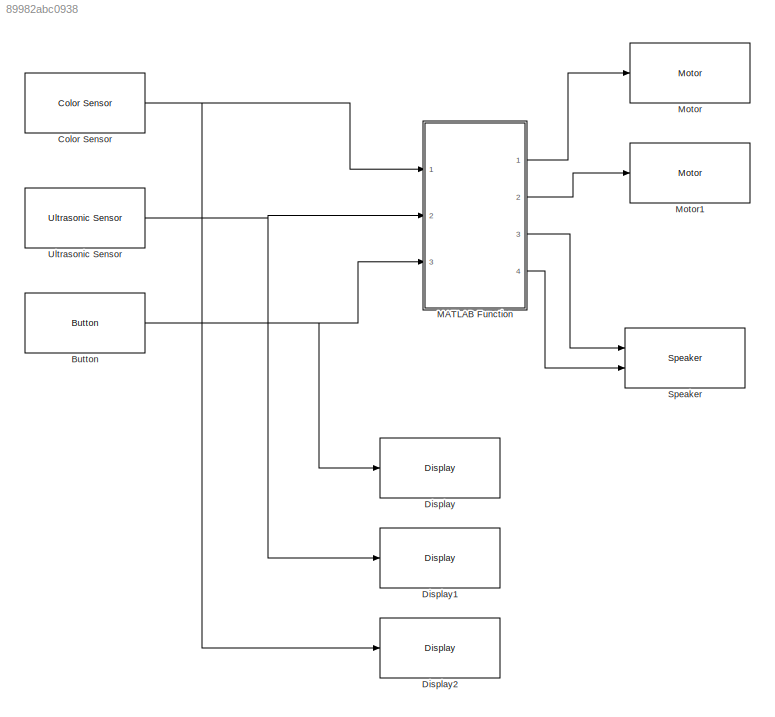
MODEL slx_89982abc0938
KIND model
CONFIG AbsTol = auto
CONFIG EnableMultiTasking = on
CONFIG FixedStep = auto
CONFIG MaxStep = auto
CONFIG MinStep = auto
CONFIG RelTol = 1e-3
CONFIG SampleTimeConstraint = Unconstrained
CONFIG Solver = FixedStepAuto
CONFIG SolverName = FixedStepAuto
CONFIG StartTime = 0.0
CONFIG StopTime = 10.0
BLOCK [Reference] Button  REF=legoev3lib/Button
  Ports = [0, 1]
  SourceBlock = legoev3lib/Button
  SourceProductBaseCode = LEGOEV3
  SourceProductName = Simulink Support Package for LEGO MINDSTORMS EV3 Hardware
  SourceType = LEGO MINDSTORMS EV3 Button
BLOCK [Reference] Color Sensor  REF=legoev3lib/Color Sensor
  Ports = [0, 1]
  SourceBlock = legoev3lib/Color Sensor
  SourceProductBaseCode = LEGOEV3
  SourceProductName = Simulink Support Package for LEGO MINDSTORMS EV3 Hardware
  SourceType = LEGO MINDSTORMS EV3 Color Sensor
BLOCK [Reference] Display  REF=legoev3lib/Display
  Ports = [1]
  SourceBlock = legoev3lib/Display
  SourceProductBaseCode = LEGOEV3
  SourceProductName = Simulink Support Package for LEGO MINDSTORMS EV3 Hardware
  SourceType = LEGO MINDSTORMS EV3 Display
BLOCK [Reference] Display1  REF=legoev3lib/Display
  Ports = [1]
  SourceBlock = legoev3lib/Display
  SourceProductBaseCode = LEGOEV3
  SourceProductName = Simulink Support Package for LEGO MINDSTORMS EV3 Hardware
  SourceType = LEGO MINDSTORMS EV3 Display
BLOCK [Reference] Display2  REF=legoev3lib/Display
  Ports = [1]
  SourceBlock = legoev3lib/Display
  SourceProductBaseCode = LEGOEV3
  SourceProductName = Simulink Support Package for LEGO MINDSTORMS EV3 Hardware
  SourceType = LEGO MINDSTORMS EV3 Display
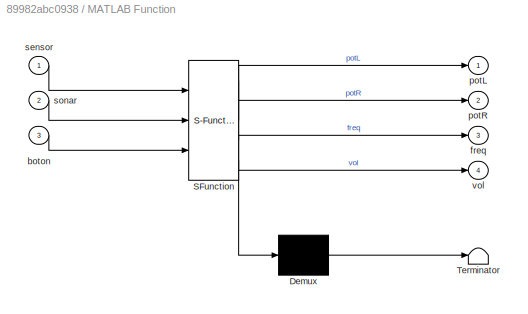
BLOCK [SubSystem] MATLAB Function
  ErrorFcn = Stateflow.Translate.translate
  PermitHierarchicalResolution = ExplicitOnly
  Ports = [3, 4]
  RequestExecContextInheritance = off
  SFBlockType = MATLAB Function
  TreatAsAtomicUnit = on
BLOCK [Demux] MATLAB Function/ Demux 
  Outputs = 1
  Ports = [1, 1]
BLOCK [S-Function] MATLAB Function/ SFunction 
  EnableBusSupport = on
  FunctionName = sf_sfun
  PortCounts = [3 5]
  Ports = [3, 5]
  SFcnIsStateOwnerBlock = off
  SFunctionDeploymentMode = off
  Tag = Stateflow S-Function 2
BLOCK [Terminator] MATLAB Function/ Terminator 
BLOCK [Inport] MATLAB Function/boton
  IconDisplay = Port number
  Port = 3
BLOCK [Outport] MATLAB Function/freq
  IconDisplay = Port number
  Port = 3
BLOCK [Outport] MATLAB Function/potL
  IconDisplay = Port number
BLOCK [Outport] MATLAB Function/potR
  IconDisplay = Port number
  Port = 2
BLOCK [Inport] MATLAB Function/sensor
  IconDisplay = Port number
BLOCK [Inport] MATLAB Function/sonar
  IconDisplay = Port number
  Port = 2
BLOCK [Outport] MATLAB Function/vol
  IconDisplay = Port number
  Port = 4
BLOCK [Reference] Motor  REF=legoev3lib/Motor
  Ports = [1]
  SourceBlock = legoev3lib/Motor
  SourceProductBaseCode = LEGOEV3
  SourceProductName = Simulink Support Package for LEGO MINDSTORMS EV3 Hardware
  SourceType = LEGO MINDSTORMS EV3 Motor
BLOCK [Reference] Motor1  REF=legoev3lib/Motor
  Ports = [1]
  SourceBlock = legoev3lib/Motor
  SourceProductBaseCode = LEGOEV3
  SourceProductName = Simulink Support Package for LEGO MINDSTORMS EV3 Hardware
  SourceType = LEGO MINDSTORMS EV3 Motor
BLOCK [Reference] Speaker  REF=legoev3lib/Speaker
  Ports = [2]
  SourceBlock = legoev3lib/Speaker
  SourceProductBaseCode = LEGOEV3
  SourceProductName = Simulink Support Package for LEGO MINDSTORMS EV3 Hardware
  SourceType = LEGO MINDSTORMS EV3 Speaker
BLOCK [Reference] Ultrasonic Sensor  REF=legoev3lib/Ultrasonic Sensor
  Ports = [0, 1]
  SourceBlock = legoev3lib/Ultrasonic Sensor
  SourceProductBaseCode = LEGOEV3
  SourceProductName = Simulink Support Package for LEGO MINDSTORMS EV3 Hardware
  SourceType = LEGO MINDSTORMS EV3 Ultrasonic Sensor
NET Button:1 -> Display:1, MATLAB Function:3
NET Color Sensor:1 -> Display2:1, MATLAB Function:1
LINE MATLAB Function:1 -> Motor:1
LINE MATLAB Function:2 -> Motor1:1
LINE MATLAB Function:3 -> Speaker:1
LINE MATLAB Function:4 -> Speaker:2
NET Ultrasonic Sensor:1 -> Display1:1, MATLAB Function:2
note: NET lines group one-source signal fan-out (src -> all destinations, sorted); 1:1 wires keep LINE
CHART MATLAB Function states=1 transitions=1
  STATE_LABEL 'eML_blk_kernel()'
  STATE_LABEL 'SCRIPT:\nfunction [potL, potR, freq, vol] = main(sensor, sonar, boton)\np = 50; % potencia motores\nfreq=0; % in Hz\nvol=0; % from 0 to 100\npotL=0; % pot motor izq\npotR=0; % pot motor der\n\n% estado = true --> buscar\n% estado = false --> parado\npersistent estado \nif (isempty(estado))\n    estado = true;\nend\n\nif (estado) % Estoy buscando\n    % Compruebo si veo un papel\n    detected = Foraging(sensor);\n  ...<+1618ch>'
